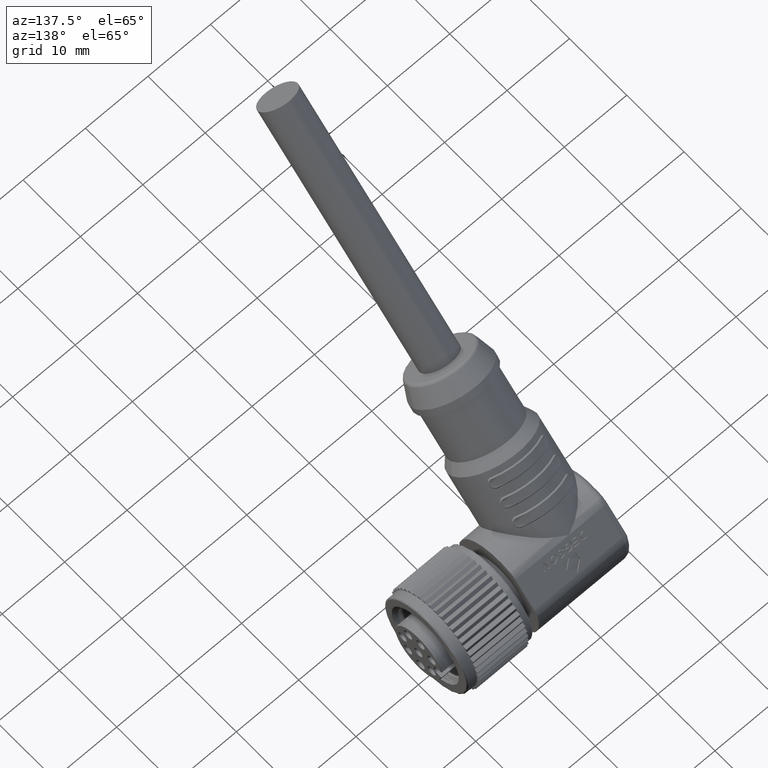
[diagram: clean part render]
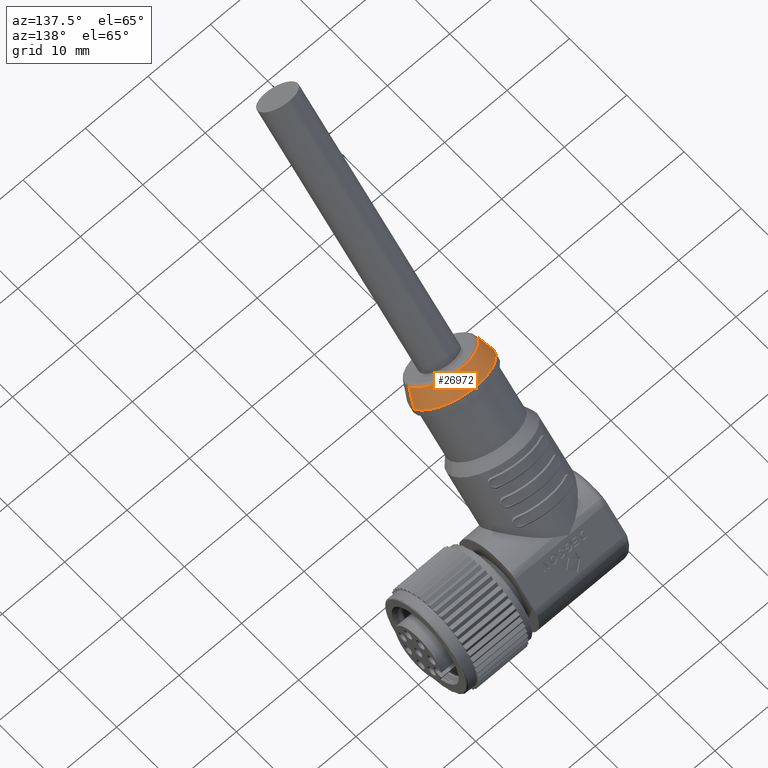
[diagram: same view with one face highlighted and labeled with its STEP entity id]
A machine part, auxiliary view. The second image highlights one B-rep face of the part: STEP entity #26972.
In plain terms, the highlighted conical surface has half-angle 18.435 deg.
Its self-contained STEP definition (entity closure, byte-faithful):
#6383=CARTESIAN_POINT('',(-2.15E1,-1.767766952966E1,1.767766952966E1));
#6384=DIRECTION('',(0.E0,7.071067811865E-1,-7.071067811865E-1));
#6385=DIRECTION('',(-1.E0,0.E0,0.E0));
#6386=AXIS2_PLACEMENT_3D('',#6383,#6384,#6385);
#6388=DIRECTION('',(-3.162277660165E-1,-6.708203932500E-1,6.708203932500E-1));
#6389=VECTOR('',#6388,2.801898050152E0);
#6390=CARTESIAN_POINT('',(-1.55E1,-1.767766952966E1,1.767766952966E1));
#6391=LINE('',#6390,#6389);
#6392=CARTESIAN_POINT('',(-2.15E1,-1.955723988151E1,1.955723988151E1));
#6393=DIRECTION('',(0.E0,7.071067811865E-1,-7.071067811865E-1));
#6394=DIRECTION('',(-1.E0,0.E0,0.E0));
#6395=AXIS2_PLACEMENT_3D('',#6392,#6393,#6394);
#6417=DIRECTION('',(3.162277660165E-1,-6.708203932500E-1,6.708203932500E-1));
#6418=VECTOR('',#6417,2.801898050152E0);
#6419=CARTESIAN_POINT('',(-2.75E1,-1.767766952966E1,1.767766952966E1));
#6420=LINE('',#6419,#6418);
#14140=CARTESIAN_POINT('',(-2.75E1,-1.767766952966E1,1.767766952966E1));
#14141=VERTEX_POINT('',#14140);
#14142=CARTESIAN_POINT('',(-1.55E1,-1.767766952966E1,1.767766952966E1));
#14143=VERTEX_POINT('',#14142);
#14144=CARTESIAN_POINT('',(-2.661396203900E1,-1.955723988151E1,
1.955723988151E1));
#14145=CARTESIAN_POINT('',(-1.638603796100E1,-1.955723988151E1,
1.955723988151E1));
#14146=VERTEX_POINT('',#14144);
#14147=VERTEX_POINT('',#14145);
#26958=CARTESIAN_POINT('',(-2.15E1,-1.861745470558E1,1.861745470558E1));
#26959=DIRECTION('',(0.E0,7.071067811865E-1,-7.071067811865E-1));
#26960=DIRECTION('',(-1.E0,0.E0,0.E0));
#26961=AXIS2_PLACEMENT_3D('',#26958,#26959,#26960);
#26962=CONICAL_SURFACE('',#26961,5.556981019497E0,1.843494882292E1);
#26964=ORIENTED_EDGE('',*,*,#26963,.F.);
#26966=ORIENTED_EDGE('',*,*,#26965,.F.);
#26967=ORIENTED_EDGE('',*,*,#26953,.T.);
#26969=ORIENTED_EDGE('',*,*,#26968,.T.);
#26970=EDGE_LOOP('',(#26964,#26966,#26967,#26969));
#26971=FACE_OUTER_BOUND('',#26970,.F.);
#26972=ADVANCED_FACE('',(#26971),#26962,.T.);
#6387=CIRCLE('',#6386,6.E0);
#6396=CIRCLE('',#6395,5.113962038995E0);
#26953=EDGE_CURVE('',#14141,#14143,#6387,.T.);
#26963=EDGE_CURVE('',#14146,#14147,#6396,.T.);
#26965=EDGE_CURVE('',#14141,#14146,#6420,.T.);
#26968=EDGE_CURVE('',#14143,#14147,#6391,.T.);